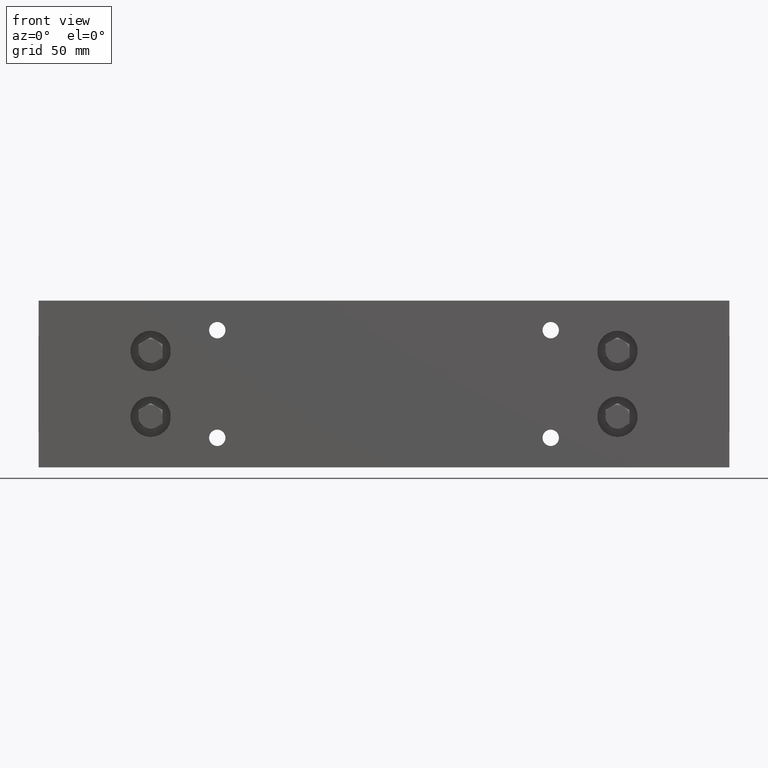
[diagram: clean part render]
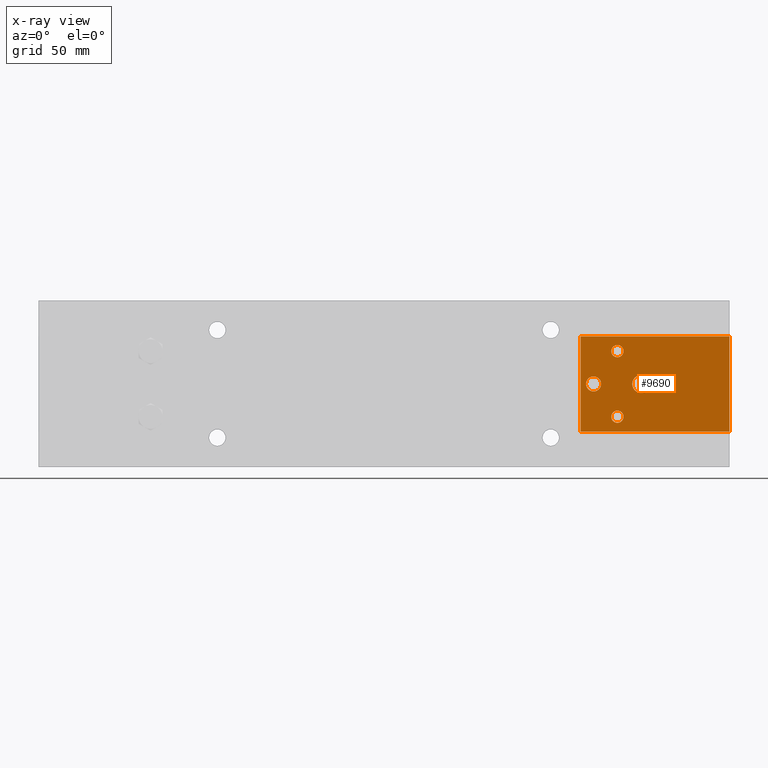
[diagram: x-ray — body ghosted, one internal face saturated and labeled with its STEP entity id]
A machine part, front view, then the same camera in x-ray: the body is ghosted and one INTERNAL B-rep face — a face not visible from any outside direction — is saturated and labeled: STEP entity #9690.
In plain terms, the highlighted planar face has unit normal (0, 1, 0).
Its self-contained STEP definition (entity closure, byte-faithful):
#274 = VECTOR ( 'NONE', #5861, 39.37007874015748100 ) ;
#387 = ORIENTED_EDGE ( 'NONE', *, *, #6562, .F. ) ;
#433 = VERTEX_POINT ( 'NONE', #9144 ) ;
#959 = AXIS2_PLACEMENT_3D ( 'NONE', #2213, #15557, #4139 ) ;
#1076 = VECTOR ( 'NONE', #11122, 39.37007874015748100 ) ;
#1433 = LINE ( 'NONE', #6574, #11557 ) ;
#1545 = CIRCLE ( 'NONE', #13417, 0.1284999999999997300 ) ;
#2213 = CARTESIAN_POINT ( 'NONE',  ( 9.800000000000007800, -0.3120000000000005000, -0.6879999999999320000 ) ) ;
#2300 = FACE_BOUND ( 'NONE', #13831, .T. ) ;
#3057 = CARTESIAN_POINT ( 'NONE',  ( 9.799999999999998900, -0.3120000000000005000, 0.5595000000000682800 ) ) ;
#3372 = ORIENTED_EDGE ( 'NONE', *, *, #9528, .T. ) ;
#3433 = VERTEX_POINT ( 'NONE', #15175 ) ;
#3533 = DIRECTION ( 'NONE',  ( 0.0000000000000000000, 1.000000000000000000, 0.0000000000000000000 ) ) ;
#3900 = CARTESIAN_POINT ( 'NONE',  ( 9.799999999999998900, -0.3120000000000005000, 0.6880000000000680000 ) ) ;
#3924 = CIRCLE ( 'NONE', #14858, 0.1579999999999997800 ) ;
#3981 = VERTEX_POINT ( 'NONE', #24293 ) ;
#4139 = DIRECTION ( 'NONE',  ( 8.503806984168913100E-015, 0.0000000000000000000, -1.000000000000000000 ) ) ;
#4275 = VERTEX_POINT ( 'NONE', #4346 ) ;
#4346 = CARTESIAN_POINT ( 'NONE',  ( 12.15199999999999600, -0.3120000000000002800, 1.000000000000084400 ) ) ;
#4631 = CARTESIAN_POINT ( 'NONE',  ( 9.300000000000002500, -0.3120000000000003300, 6.455650516606287800E-014 ) ) ;
#4651 = DIRECTION ( 'NONE',  ( -1.000000000000000000, 0.0000000000000000000, -6.982962677686267500E-015 ) ) ;
#5369 = PLANE ( 'NONE',  #24470 ) ;
#5370 = LINE ( 'NONE', #11502, #274 ) ;
#5447 = ORIENTED_EDGE ( 'NONE', *, *, #15250, .T. ) ;
#5799 = AXIS2_PLACEMENT_3D ( 'NONE', #18383, #6982, #20271 ) ;
#5828 = DIRECTION ( 'NONE',  ( 8.503806984168930500E-015, 0.0000000000000000000, -1.000000000000000000 ) ) ;
#5861 = DIRECTION ( 'NONE',  ( -6.982962677686265900E-015, -0.0000000000000000000, 1.000000000000000000 ) ) ;
#6461 = EDGE_LOOP ( 'NONE', ( #3372 ) ) ;
#6562 = EDGE_CURVE ( 'NONE', #22221, #14013, #16407, .T. ) ;
#6569 = DIRECTION ( 'NONE',  ( 1.000000000000000000, 0.0000000000000000000, 6.982962677686256500E-015 ) ) ;
#6574 = CARTESIAN_POINT ( 'NONE',  ( 12.15199999999999600, -0.3120000000000002800, 1.000000000000084400 ) ) ;
#6591 = ORIENTED_EDGE ( 'NONE', *, *, #13687, .T. ) ;
#6982 = DIRECTION ( 'NONE',  ( 1.130108105487147000E-016, 1.000000000000000000, 7.891502722367482200E-031 ) ) ;
#7385 = FACE_OUTER_BOUND ( 'NONE', #9929, .T. ) ;
#7989 = EDGE_CURVE ( 'NONE', #4275, #3981, #1433, .T. ) ;
#8371 = CARTESIAN_POINT ( 'NONE',  ( 12.15200000000001000, -0.3120000000000002800, -0.9999999999999156200 ) ) ;
#8652 = CIRCLE ( 'NONE', #5799, 0.1885000000000004700 ) ;
#9144 = CARTESIAN_POINT ( 'NONE',  ( 10.48850000000000400, -0.3120000000000004400, 7.285575630849299200E-014 ) ) ;
#9528 = EDGE_CURVE ( 'NONE', #22229, #22229, #1545, .T. ) ;
#9690 = ADVANCED_FACE ( 'NONE', ( #12427, #22001, #10164, #2300, #7385 ), #5369, .F. ) ;
#9929 = EDGE_LOOP ( 'NONE', ( #11233, #16788, #387, #11303 ) ) ;
#10164 = FACE_BOUND ( 'NONE', #12227, .T. ) ;
#11122 = DIRECTION ( 'NONE',  ( -6.982962677686265900E-015, -0.0000000000000000000, 1.000000000000000000 ) ) ;
#11233 = ORIENTED_EDGE ( 'NONE', *, *, #7989, .T. ) ;
#11303 = ORIENTED_EDGE ( 'NONE', *, *, #18458, .T. ) ;
#11502 = CARTESIAN_POINT ( 'NONE',  ( 9.027000000000009900, -0.3120000000000002800, -0.9999999999999373800 ) ) ;
#11557 = VECTOR ( 'NONE', #19859, 39.37007874015748100 ) ;
#12209 = CARTESIAN_POINT ( 'NONE',  ( 12.15200000000001000, -0.3120000000000002800, -0.9999999999999156200 ) ) ;
#12227 = EDGE_LOOP ( 'NONE', ( #5447 ) ) ;
#12427 = FACE_BOUND ( 'NONE', #6461, .T. ) ;
#13417 = AXIS2_PLACEMENT_3D ( 'NONE', #3900, #17214, #5828 ) ;
#13663 = ORIENTED_EDGE ( 'NONE', *, *, #22710, .T. ) ;
#13687 = EDGE_CURVE ( 'NONE', #21924, #21924, #3924, .T. ) ;
#13831 = EDGE_LOOP ( 'NONE', ( #6591 ) ) ;
#14013 = VERTEX_POINT ( 'NONE', #18760 ) ;
#14187 = EDGE_CURVE ( 'NONE', #14013, #3981, #5370, .T. ) ;
#14858 = AXIS2_PLACEMENT_3D ( 'NONE', #4631, #17965, #6569 ) ;
#14926 = CARTESIAN_POINT ( 'NONE',  ( 12.15200000000001000, -0.3120000000000002800, -0.9999999999999156200 ) ) ;
#15175 = CARTESIAN_POINT ( 'NONE',  ( 9.800000000000009600, -0.3120000000000005000, -0.8164999999999319500 ) ) ;
#15250 = EDGE_CURVE ( 'NONE', #433, #433, #8652, .T. ) ;
#15557 = DIRECTION ( 'NONE',  ( 0.0000000000000000000, 1.000000000000000000, 0.0000000000000000000 ) ) ;
#15677 = LINE ( 'NONE', #22555, #1076 ) ;
#16407 = LINE ( 'NONE', #12209, #18476 ) ;
#16788 = ORIENTED_EDGE ( 'NONE', *, *, #14187, .F. ) ;
#16852 = DIRECTION ( 'NONE',  ( 6.982962677686265900E-015, 0.0000000000000000000, -1.000000000000000000 ) ) ;
#17214 = DIRECTION ( 'NONE',  ( 0.0000000000000000000, 1.000000000000000000, 0.0000000000000000000 ) ) ;
#17514 = CIRCLE ( 'NONE', #959, 0.1285000000000000000 ) ;
#17965 = DIRECTION ( 'NONE',  ( 1.130108105487147000E-016, 1.000000000000000000, 7.891502722367482200E-031 ) ) ;
#18383 = CARTESIAN_POINT ( 'NONE',  ( 10.30000000000000200, -0.3120000000000004400, 7.153946784374914500E-014 ) ) ;
#18458 = EDGE_CURVE ( 'NONE', #22221, #4275, #15677, .T. ) ;
#18476 = VECTOR ( 'NONE', #4651, 39.37007874015748100 ) ;
#18760 = CARTESIAN_POINT ( 'NONE',  ( 9.027000000000009900, -0.3120000000000002800, -0.9999999999999373800 ) ) ;
#19859 = DIRECTION ( 'NONE',  ( -1.000000000000000000, 0.0000000000000000000, -6.982962677686267500E-015 ) ) ;
#20271 = DIRECTION ( 'NONE',  ( 1.000000000000000000, 0.0000000000000000000, 6.982962677686219400E-015 ) ) ;
#20437 = CARTESIAN_POINT ( 'NONE',  ( 9.458000000000002000, -0.3120000000000003300, 6.565981326913730000E-014 ) ) ;
#21262 = EDGE_LOOP ( 'NONE', ( #13663 ) ) ;
#21924 = VERTEX_POINT ( 'NONE', #20437 ) ;
#22001 = FACE_BOUND ( 'NONE', #21262, .T. ) ;
#22221 = VERTEX_POINT ( 'NONE', #8371 ) ;
#22229 = VERTEX_POINT ( 'NONE', #3057 ) ;
#22555 = CARTESIAN_POINT ( 'NONE',  ( 12.15200000000001000, -0.3120000000000002800, -0.9999999999999156200 ) ) ;
#22710 = EDGE_CURVE ( 'NONE', #3433, #3433, #17514, .T. ) ;
#24293 = CARTESIAN_POINT ( 'NONE',  ( 9.026999999999995700, -0.3120000000000002800, 1.000000000000062600 ) ) ;
#24470 = AXIS2_PLACEMENT_3D ( 'NONE', #14926, #3533, #16852 ) ;